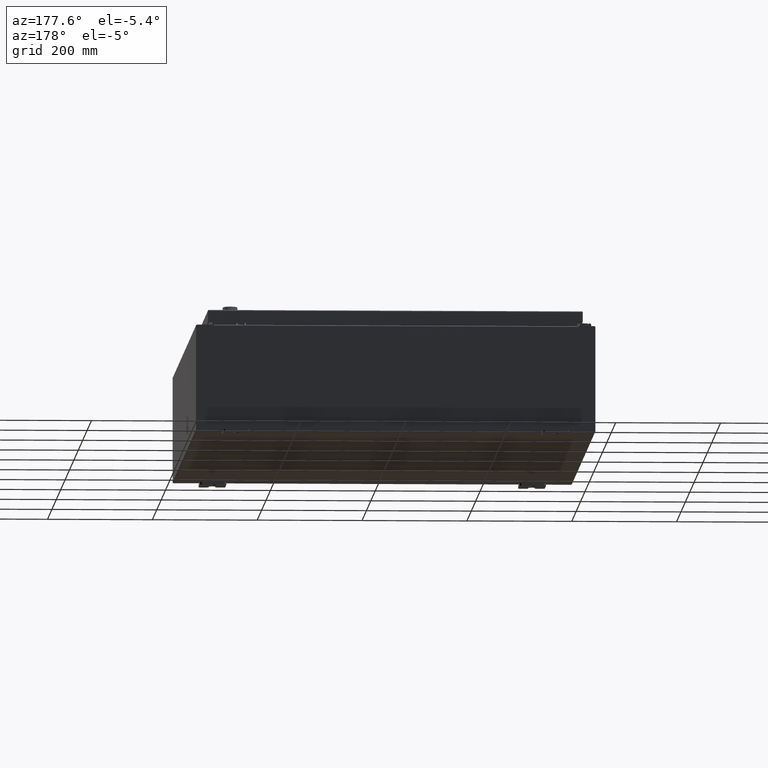
[diagram: clean part render]
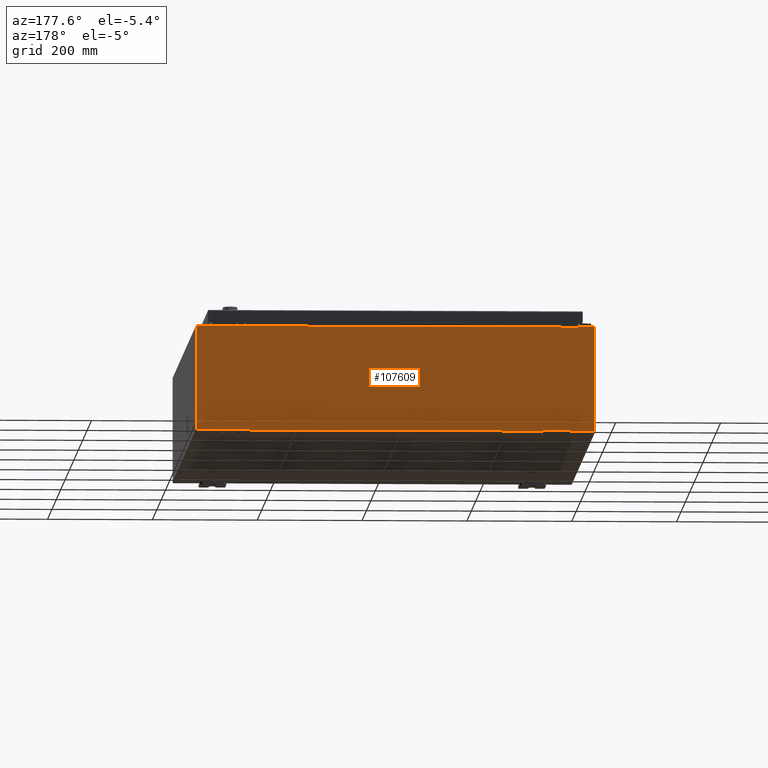
[diagram: same view with one face highlighted and labeled with its STEP entity id]
A machine part, auxiliary view. The second image highlights one B-rep face of the part: STEP entity #107609.
In plain terms, the highlighted planar face has unit normal (0, -1, 0).
Its self-contained STEP definition (entity closure, byte-faithful):
#433 = LINE ( 'NONE', #77904, #76641 ) ;
#1327 = DIRECTION ( 'NONE',  ( 1.000000000000000000, 0.0000000000000000000, 0.0000000000000000000 ) ) ;
#2936 = VERTEX_POINT ( 'NONE', #32949 ) ;
#5545 = VECTOR ( 'NONE', #121094, 39.37007874015748100 ) ;
#6530 = VERTEX_POINT ( 'NONE', #7541 ) ;
#6631 = VERTEX_POINT ( 'NONE', #33992 ) ;
#6807 = CIRCLE ( 'NONE', #75083, 0.01867499999999949400 ) ;
#7164 = EDGE_CURVE ( 'NONE', #33692, #37095, #8709, .T. ) ;
#7541 = CARTESIAN_POINT ( 'NONE',  ( 13.67455000000000200, 0.0000000000000000000, 3.874949999999999700 ) ) ;
#7724 = CARTESIAN_POINT ( 'NONE',  ( 0.0000000000000000000, 0.0000000000000000000, 0.0000000000000000000 ) ) ;
#8709 = LINE ( 'NONE', #69767, #5545 ) ;
#10146 = VECTOR ( 'NONE', #54584, 39.37007874015748100 ) ;
#11376 = CARTESIAN_POINT ( 'NONE',  ( -14.92529999999999800, 0.0000000000000000000, 3.925299999999999600 ) ) ;
#12210 = ORIENTED_EDGE ( 'NONE', *, *, #66760, .T. ) ;
#15747 = EDGE_CURVE ( 'NONE', #114378, #94499, #119780, .T. ) ;
#19040 = CARTESIAN_POINT ( 'NONE',  ( -14.92529999999999800, 0.0000000000000000000, 3.925299999999999600 ) ) ;
#20708 = EDGE_CURVE ( 'NONE', #103973, #80021, #69323, .T. ) ;
#21278 = AXIS2_PLACEMENT_3D ( 'NONE', #31581, #101211, #41560 ) ;
#21857 = VECTOR ( 'NONE', #26824, 39.37007874015748100 ) ;
#23189 = DIRECTION ( 'NONE',  ( 0.0000000000000000000, 0.0000000000000000000, -1.000000000000000000 ) ) ;
#24657 = CARTESIAN_POINT ( 'NONE',  ( -13.63719999999999800, 1.024442997624098700E-016, 3.912299999999999700 ) ) ;
#25365 = CARTESIAN_POINT ( 'NONE',  ( -14.92529999999999800, 0.0000000000000000000, 3.925299999999999600 ) ) ;
#25943 = DIRECTION ( 'NONE',  ( -0.0000000000000000000, 1.000000000000000000, -0.0000000000000000000 ) ) ;
#26157 = CARTESIAN_POINT ( 'NONE',  ( -14.92529999999999800, 0.0000000000000000000, 3.925299999999999600 ) ) ;
#26824 = DIRECTION ( 'NONE',  ( -4.340572780400004900E-014, 0.0000000000000000000, -1.000000000000000000 ) ) ;
#27574 = CARTESIAN_POINT ( 'NONE',  ( 14.92530000000000200, 0.0000000000000000000, 3.925299999999999600 ) ) ;
#29472 = ORIENTED_EDGE ( 'NONE', *, *, #68450, .F. ) ;
#29978 = CARTESIAN_POINT ( 'NONE',  ( 13.63720000000000400, 0.0000000000000000000, 3.912299999999999700 ) ) ;
#30261 = PLANE ( 'NONE',  #64480 ) ;
#30726 = EDGE_CURVE ( 'NONE', #6530, #2936, #6807, .T. ) ;
#31581 = CARTESIAN_POINT ( 'NONE',  ( -13.65587499999999600, 0.0000000000000000000, 3.874949999999999700 ) ) ;
#31710 = EDGE_CURVE ( 'NONE', #43384, #128502, #47034, .T. ) ;
#32949 = CARTESIAN_POINT ( 'NONE',  ( 13.63720000000000400, 0.0000000000000000000, 3.874949999999999700 ) ) ;
#33266 = VECTOR ( 'NONE', #54138, 39.37007874015748100 ) ;
#33692 = VERTEX_POINT ( 'NONE', #49150 ) ;
#33992 = CARTESIAN_POINT ( 'NONE',  ( -13.63719999999999600, 1.024442997624098700E-016, 3.912299999999999700 ) ) ;
#35463 = EDGE_CURVE ( 'NONE', #94499, #33692, #112595, .T. ) ;
#36131 = DIRECTION ( 'NONE',  ( 1.000000000000000000, 0.0000000000000000000, 0.0000000000000000000 ) ) ;
#36507 = LINE ( 'NONE', #24657, #10146 ) ;
#37039 = ORIENTED_EDGE ( 'NONE', *, *, #77928, .T. ) ;
#37095 = VERTEX_POINT ( 'NONE', #127969 ) ;
#37195 = CARTESIAN_POINT ( 'NONE',  ( 13.67454999999983300, -0.0000000000000000000, -5.935537951421816200E-013 ) ) ;
#40248 = DIRECTION ( 'NONE',  ( 0.0000000000000000000, -1.000000000000000000, 0.0000000000000000000 ) ) ;
#40853 = ORIENTED_EDGE ( 'NONE', *, *, #30726, .F. ) ;
#41560 = DIRECTION ( 'NONE',  ( 0.0000000000000000000, 0.0000000000000000000, -1.000000000000000000 ) ) ;
#41817 = EDGE_LOOP ( 'NONE', ( #29472, #114091, #67206, #37039, #117619, #40853, #125978, #74241, #80591, #126117, #12210, #48406 ) ) ;
#42036 = CARTESIAN_POINT ( 'NONE',  ( 13.67455000000000400, 0.0000000000000000000, 3.925299999999999600 ) ) ;
#43384 = VERTEX_POINT ( 'NONE', #19040 ) ;
#45973 = LINE ( 'NONE', #54839, #69333 ) ;
#46877 = VECTOR ( 'NONE', #125657, 39.37007874015748100 ) ;
#47034 = LINE ( 'NONE', #26157, #70404 ) ;
#48323 = DIRECTION ( 'NONE',  ( 0.0000000000000000000, 0.0000000000000000000, 1.000000000000000000 ) ) ;
#48406 = ORIENTED_EDGE ( 'NONE', *, *, #31710, .T. ) ;
#49150 = CARTESIAN_POINT ( 'NONE',  ( 14.92530000000000200, 0.0000000000000000000, -3.925299999999999600 ) ) ;
#51834 = CARTESIAN_POINT ( 'NONE',  ( -13.63719999999999600, -0.0000000000000000000, 3.874949999999999700 ) ) ;
#54138 = DIRECTION ( 'NONE',  ( 0.0000000000000000000, 0.0000000000000000000, -1.000000000000000000 ) ) ;
#54584 = DIRECTION ( 'NONE',  ( 1.000000000000000000, 0.0000000000000000000, 0.0000000000000000000 ) ) ;
#54839 = CARTESIAN_POINT ( 'NONE',  ( 13.63720000000000400, 0.0000000000000000000, 0.0000000000000000000 ) ) ;
#64480 = AXIS2_PLACEMENT_3D ( 'NONE', #7724, #40248, #109830 ) ;
#64865 = DIRECTION ( 'NONE',  ( 0.0000000000000000000, 0.0000000000000000000, 1.000000000000000000 ) ) ;
#66760 = EDGE_CURVE ( 'NONE', #37095, #43384, #73303, .T. ) ;
#66922 = VECTOR ( 'NONE', #1327, 39.37007874015748100 ) ;
#67206 = ORIENTED_EDGE ( 'NONE', *, *, #72937, .F. ) ;
#68057 = EDGE_CURVE ( 'NONE', #114378, #6530, #74680, .T. ) ;
#68450 = EDGE_CURVE ( 'NONE', #80021, #128502, #433, .T. ) ;
#69323 = CIRCLE ( 'NONE', #21278, 0.01867499999999949400 ) ;
#69333 = VECTOR ( 'NONE', #64865, 39.37007874015748100 ) ;
#69767 = CARTESIAN_POINT ( 'NONE',  ( -14.92529999999999800, 0.0000000000000000000, -3.925299999999999600 ) ) ;
#70404 = VECTOR ( 'NONE', #36131, 39.37007874015748100 ) ;
#72937 = EDGE_CURVE ( 'NONE', #6631, #103973, #82398, .T. ) ;
#73303 = LINE ( 'NONE', #25365, #46877 ) ;
#74162 = CARTESIAN_POINT ( 'NONE',  ( 14.92530000000000200, 0.0000000000000000000, 3.925299999999999600 ) ) ;
#74241 = ORIENTED_EDGE ( 'NONE', *, *, #15747, .T. ) ;
#74319 = CARTESIAN_POINT ( 'NONE',  ( -13.67454999999999500, 0.0000000000000000000, 3.925299999999999600 ) ) ;
#74680 = LINE ( 'NONE', #37195, #21857 ) ;
#75083 = AXIS2_PLACEMENT_3D ( 'NONE', #85485, #25943, #95521 ) ;
#76641 = VECTOR ( 'NONE', #48323, 39.37007874015748100 ) ;
#76969 = EDGE_CURVE ( 'NONE', #2936, #109122, #45973, .T. ) ;
#77904 = CARTESIAN_POINT ( 'NONE',  ( -13.67454999999999500, -0.0000000000000000000, 0.0000000000000000000 ) ) ;
#77928 = EDGE_CURVE ( 'NONE', #6631, #109122, #36507, .T. ) ;
#80021 = VERTEX_POINT ( 'NONE', #97308 ) ;
#80591 = ORIENTED_EDGE ( 'NONE', *, *, #35463, .T. ) ;
#82398 = LINE ( 'NONE', #85275, #85520 ) ;
#85275 = CARTESIAN_POINT ( 'NONE',  ( -13.63719999999999600, -0.0000000000000000000, 0.0000000000000000000 ) ) ;
#85485 = CARTESIAN_POINT ( 'NONE',  ( 13.65587500000000200, 0.0000000000000000000, 3.874949999999999700 ) ) ;
#85520 = VECTOR ( 'NONE', #23189, 39.37007874015748100 ) ;
#94499 = VERTEX_POINT ( 'NONE', #27574 ) ;
#95521 = DIRECTION ( 'NONE',  ( 0.0000000000000000000, 0.0000000000000000000, -1.000000000000000000 ) ) ;
#97308 = CARTESIAN_POINT ( 'NONE',  ( -13.67454999999999500, 0.0000000000000000000, 3.874949999999999700 ) ) ;
#101211 = DIRECTION ( 'NONE',  ( -0.0000000000000000000, 1.000000000000000000, -0.0000000000000000000 ) ) ;
#103973 = VERTEX_POINT ( 'NONE', #51834 ) ;
#107609 = ADVANCED_FACE ( 'NONE', ( #123365 ), #30261, .F. ) ;
#109122 = VERTEX_POINT ( 'NONE', #29978 ) ;
#109830 = DIRECTION ( 'NONE',  ( 0.0000000000000000000, -0.0000000000000000000, -1.000000000000000000 ) ) ;
#112595 = LINE ( 'NONE', #74162, #33266 ) ;
#114091 = ORIENTED_EDGE ( 'NONE', *, *, #20708, .F. ) ;
#114378 = VERTEX_POINT ( 'NONE', #42036 ) ;
#117619 = ORIENTED_EDGE ( 'NONE', *, *, #76969, .F. ) ;
#119780 = LINE ( 'NONE', #11376, #66922 ) ;
#121094 = DIRECTION ( 'NONE',  ( -1.000000000000000000, -0.0000000000000000000, -0.0000000000000000000 ) ) ;
#123365 = FACE_OUTER_BOUND ( 'NONE', #41817, .T. ) ;
#125657 = DIRECTION ( 'NONE',  ( -0.0000000000000000000, -0.0000000000000000000, 1.000000000000000000 ) ) ;
#125978 = ORIENTED_EDGE ( 'NONE', *, *, #68057, .F. ) ;
#126117 = ORIENTED_EDGE ( 'NONE', *, *, #7164, .T. ) ;
#127969 = CARTESIAN_POINT ( 'NONE',  ( -14.92529999999999800, 0.0000000000000000000, -3.925299999999999600 ) ) ;
#128502 = VERTEX_POINT ( 'NONE', #74319 ) ;